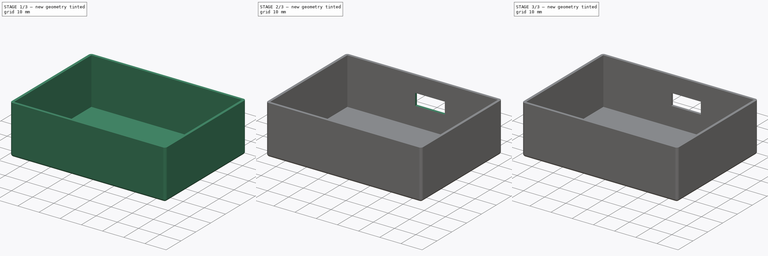
[diagram: build sequence overview — one tinted view per stage of 3, left to right]
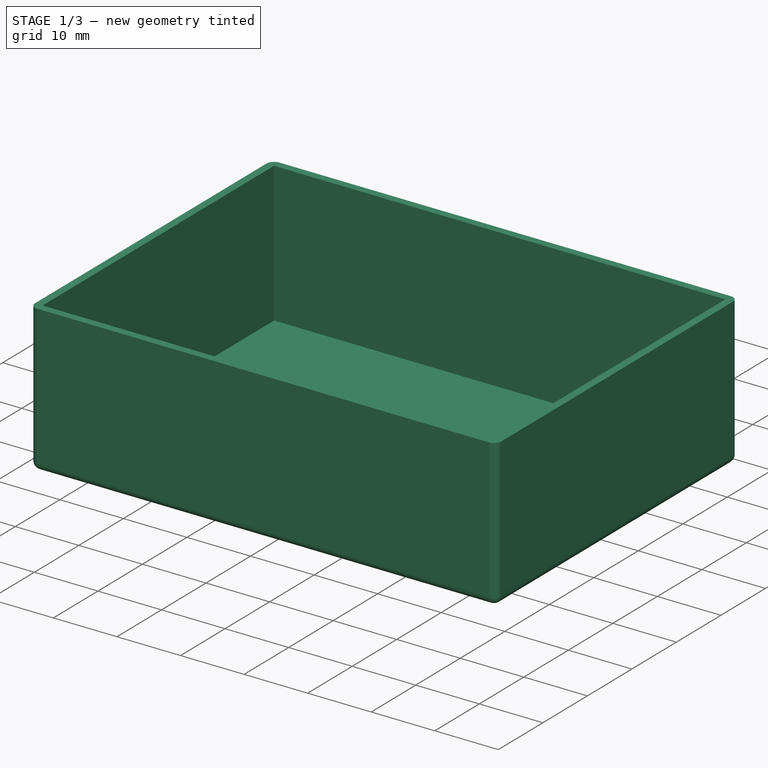
[diagram: stage 1 of 3 — iso view after this stage's code; geometry added in this stage tinted green]
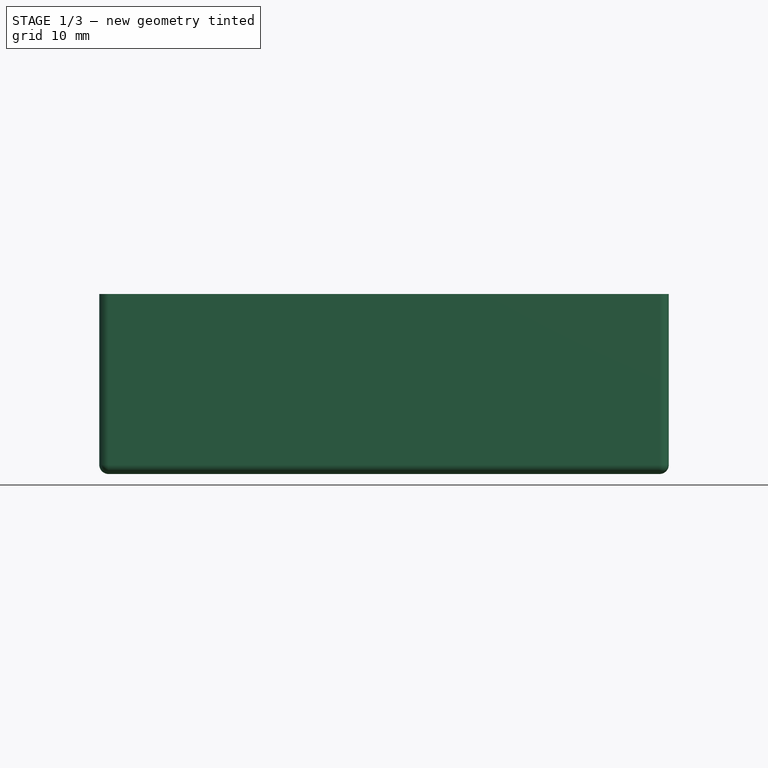
[diagram: stage 1 of 3 — front view after this stage's code; geometry added in this stage tinted green]
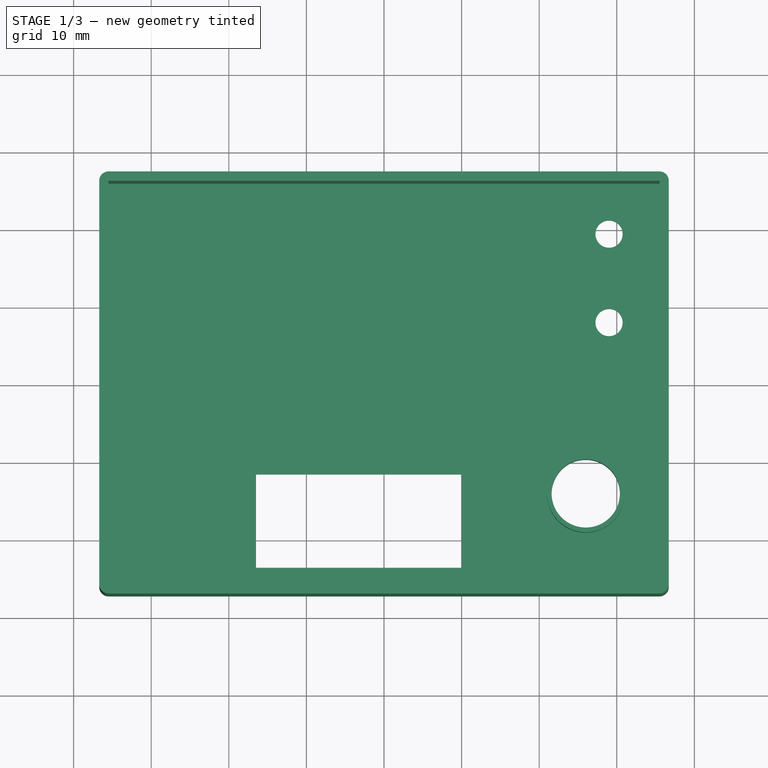
[diagram: stage 1 of 3 — top view after this stage's code; geometry added in this stage tinted green]
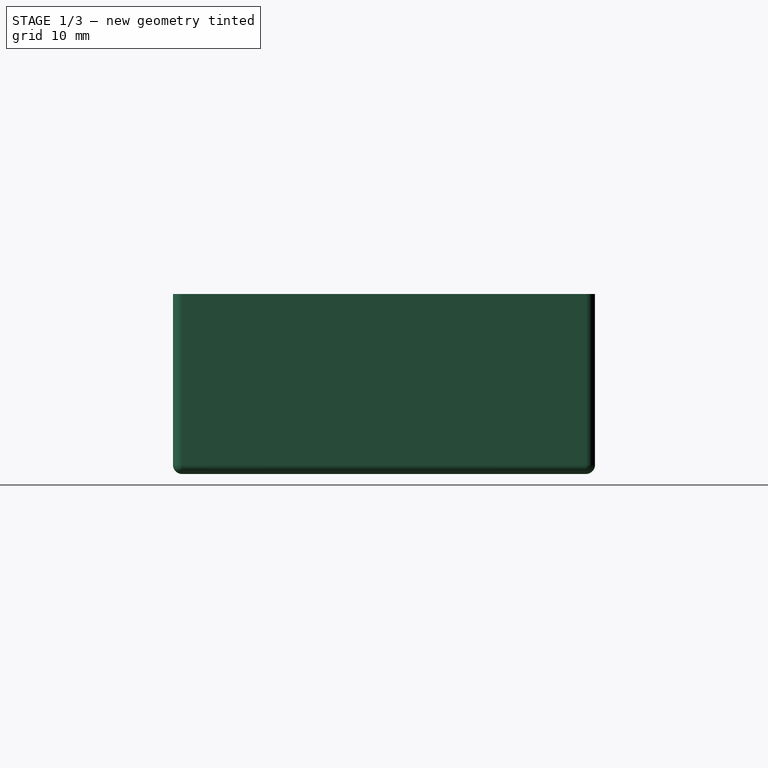
[diagram: stage 1 of 3 — right view after this stage's code; geometry added in this stage tinted green]
FCSTD DOCUMENT  (FreeCAD 0.18.3R)
Label: CajaHorno
License: All rights reserved
LicenseURL: http://en.wikipedia.org/wiki/All_rights_reserved
objects: Sketcher::SketchObject×9, PartDesign::Pocket×5, PartDesign::Pad×4, App::Part×1, PartDesign::Body×1, PartDesign::Thickness×1, PartDesign::Chamfer×1
note: 30 computed .brp shape members not serialized (recipe doc carries the construction recipe); baked Part::Feature solids carry a one-line shape summary decoded from their .brp

FEATURE [App::Part] Part  label="Caja"
  Group = -> [Body]
  Origin = -> Origin
FEATURE [PartDesign::Body] Body  label="main"
  Group = -> [Sketch,Pad,Thickness,Sketch001,Pocket,Chamfer,Sketch002,Pad001,Sketch003,Pocket001,Sketch004,Pocket002,Sketch005,Pocket003,Sketch006,Pocket004,Sketch007,Pad002,Sketch008,Pad003]
  Origin = -> Origin001
  Tip = -> Pad003
FEATURE [Sketcher::SketchObject] Sketch
  MapMode = 5
  Support = -> [Pocket001]
  sketch-geometry (4):
    g0: LineSegment StartX=-35.5 StartY=26 StartZ=0 EndX=35.5 EndY=26 EndZ=0
    g1: LineSegment StartX=35.5 StartY=26 StartZ=0 EndX=35.5 EndY=-26 EndZ=0
    g2: LineSegment StartX=35.5 StartY=-26 StartZ=0 EndX=-35.5 EndY=-26 EndZ=0
    g3: LineSegment StartX=-35.5 StartY=-26 StartZ=0 EndX=-35.5 EndY=26 EndZ=0
  constraints (11):
    c: Coincident(g0,g1)
    c: Coincident(g1,g2)
    c: Coincident(g2,g3)
    c: Coincident(g3,g0)
    c: Horizontal(g0)
    c: Horizontal(g2)
    c: Vertical(g1)
    c: Vertical(g3)
    c: Symmetric(g0,g1,g-1)
    c: DistanceX(g0,g0) = 71
    c: DistanceY(g3,g3) = 52
FEATURE [PartDesign::Pad] Pad
  Length = 22
  Length2 = 100
  Profile = -> Sketch
  Refine = true
  Type = 0
FEATURE [PartDesign::Thickness] Thickness  label="cascarón"
  Base = -> Pad [Face6]
  BaseFeature = -> Pad
  Join = 0
  Mode = 0
  Value = 1.2
FEATURE [Sketcher::SketchObject] Sketch001
  ExternalGeometry = -> [Thickness]
  MapMode = 5
  Placement = pos=(0,0,-1.2) rot=(1,0,0;3.14159rad)
  Support = -> [Thickness]
  sketch-geometry (4):
    g0: LineSegment StartX=-16.5 StartY=23.5 StartZ=0 EndX=10 EndY=23.5 EndZ=0
    g1: LineSegment StartX=10 StartY=23.5 StartZ=0 EndX=10 EndY=11.5 EndZ=0
    g2: LineSegment StartX=10 StartY=11.5 StartZ=0 EndX=-16.5 EndY=11.5 EndZ=0
    g3: LineSegment StartX=-16.5 StartY=11.5 StartZ=0 EndX=-16.5 EndY=23.5 EndZ=0
  constraints (10):
    c: Coincident(g0,g1)
    c: Coincident(g1,g2)
    c: Coincident(g2,g3)
    c: Coincident(g3,g0)
    c: Horizontal(g0)
    c: Horizontal(g2)
    c: Vertical(g1)
    c: Vertical(g3)
    c: DistanceX(g2,g2) = 26.5
    c: DistanceY(g3,g3) = 12
FEATURE [PartDesign::Pocket] Pocket
  BaseFeature = -> Thickness
  Length = 5
  Length2 = 100
  Profile = -> Sketch001
  Refine = true
  Type = 1
FEATURE [PartDesign::Chamfer] Chamfer
  Base = -> Pocket [Edge30,Edge28,Edge32,Edge25]
  BaseFeature = -> Pocket
  Size = 1
FEATURE [Sketcher::SketchObject] Sketch002
  ExternalGeometry = -> [Chamfer]
  MapMode = 5
  Support = -> [Chamfer]
  sketch-geometry (1):
    g0: Circle CenterX=26 CenterY=-14 CenterZ=0 NormalX=0 NormalY=0 NormalZ=1 AngleXU=0 Radius=5
  constraints (3):
    c: Radius(g0) = 5
    c: DistanceY(g-4,g0) = 12
    c: DistanceX(g0,g-4) = 9.5
FEATURE [PartDesign::Pad] Pad001
  BaseFeature = -> Chamfer
  Length = 5
  Length2 = 100
  Profile = -> Sketch002
  Refine = true
  Type = 0
FEATURE [Sketcher::SketchObject] Sketch003
  ExternalGeometry = -> [Pad001]
  MapMode = 5
  Placement = pos=(0,0,5) rot=(0,0,1;0rad)
  Support = -> [Pad001]
  sketch-geometry (1):
    g0: Circle CenterX=26 CenterY=-14 CenterZ=0 NormalX=0 NormalY=0 NormalZ=1 AngleXU=0 Radius=4.4
  constraints (2):
    c: Coincident(g0,g-3)
    c: Radius(g0) = 4.4
FEATURE [PartDesign::Pocket] Pocket001
  BaseFeature = -> Pad001
  Length = 5
  Length2 = 100
  Profile = -> Sketch003
  Refine = true
  Type = 1
FEATURE [Sketcher::SketchObject] Sketch004
  ExternalGeometry = -> [Pocket001]
  MapMode = 5
  Support = -> [Pocket001]
  sketch-geometry (1):
    g0: Circle CenterX=29 CenterY=19.5 CenterZ=0 NormalX=0 NormalY=0 NormalZ=1 AngleXU=0 Radius=1.75
  constraints (3):
    c: DistanceY(g0,g-4) = 6.5
    c: DistanceX(g0,g-4) = 6.5
    c: Radius(g0) = 1.75
FEATURE [PartDesign::Pocket] Pocket002
  BaseFeature = -> Pocket001
  Length = 5
  Length2 = 100
  Profile = -> Sketch004
  Refine = true
  Type = 1
FEATURE [Sketcher::SketchObject] Sketch005
  ExternalGeometry = -> [Pocket002]
  MapMode = 5
  Support = -> [Pocket002]
  sketch-geometry (1):
    g0: Circle CenterX=29 CenterY=8.09949 CenterZ=0 NormalX=0 NormalY=0 NormalZ=1 AngleXU=0 Radius=1.75
  constraints (2):
    c: DistanceX(g-3,g0) = 0
    c: Radius(g0) = 1.75
FEATURE [PartDesign::Pocket] Pocket003
  BaseFeature = -> Pocket002
  Length = 5
  Length2 = 100
  Profile = -> Sketch005
  Refine = true
  Type = 1
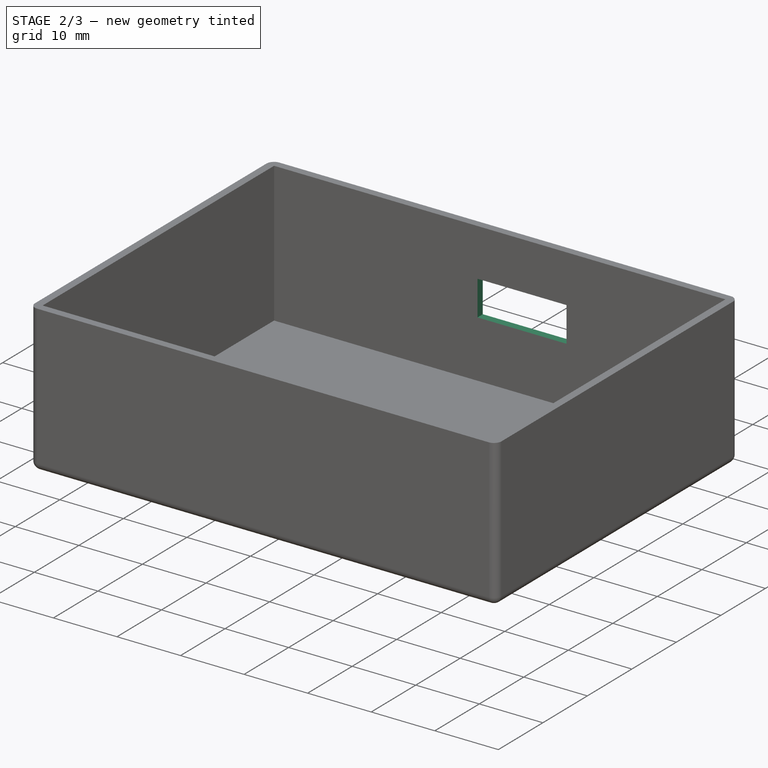
[diagram: stage 2 of 3 — iso view after this stage's code; geometry added in this stage tinted green]
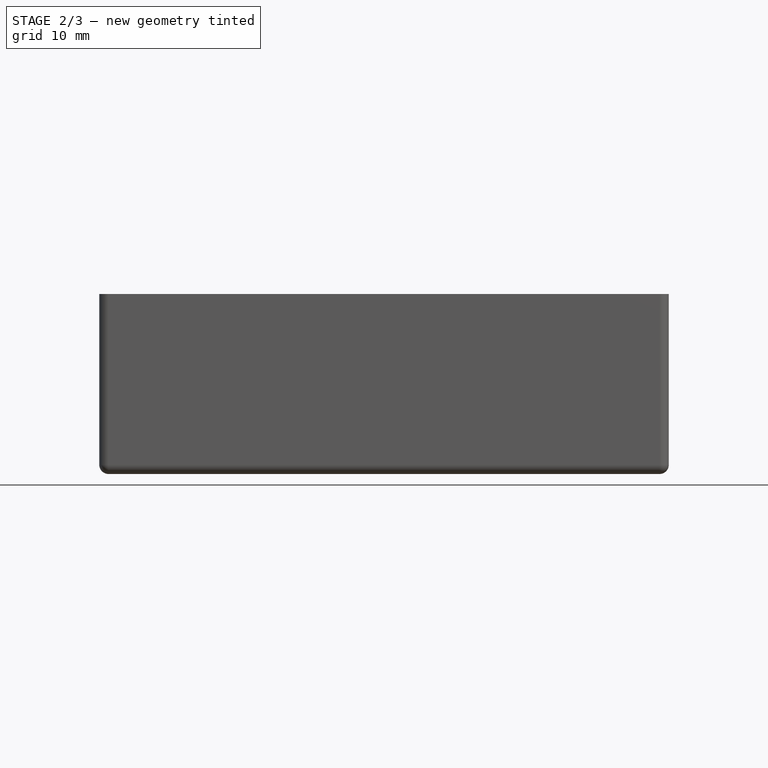
[diagram: stage 2 of 3 — front view after this stage's code; geometry added in this stage tinted green]
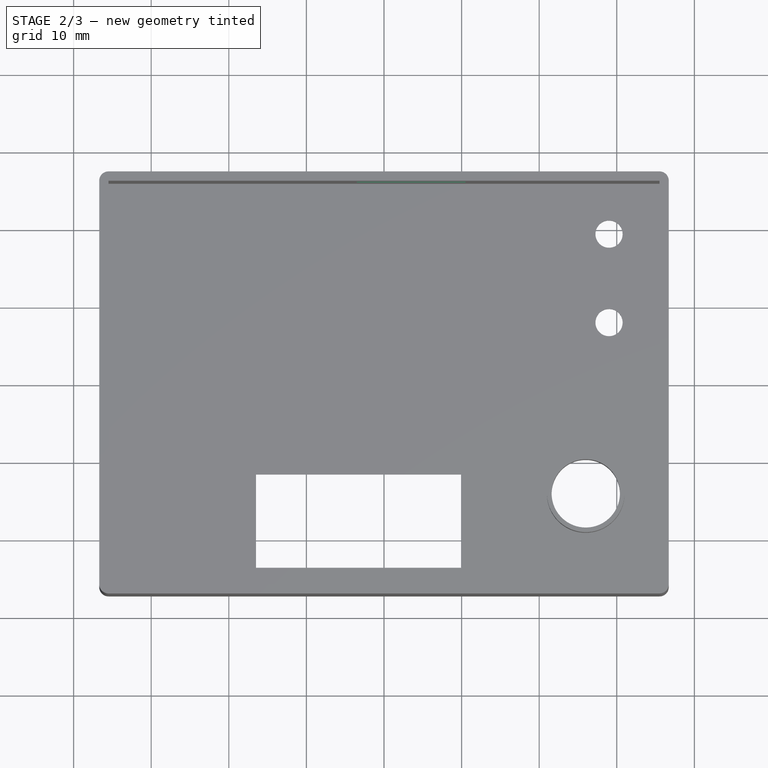
[diagram: stage 2 of 3 — top view after this stage's code; geometry added in this stage tinted green]
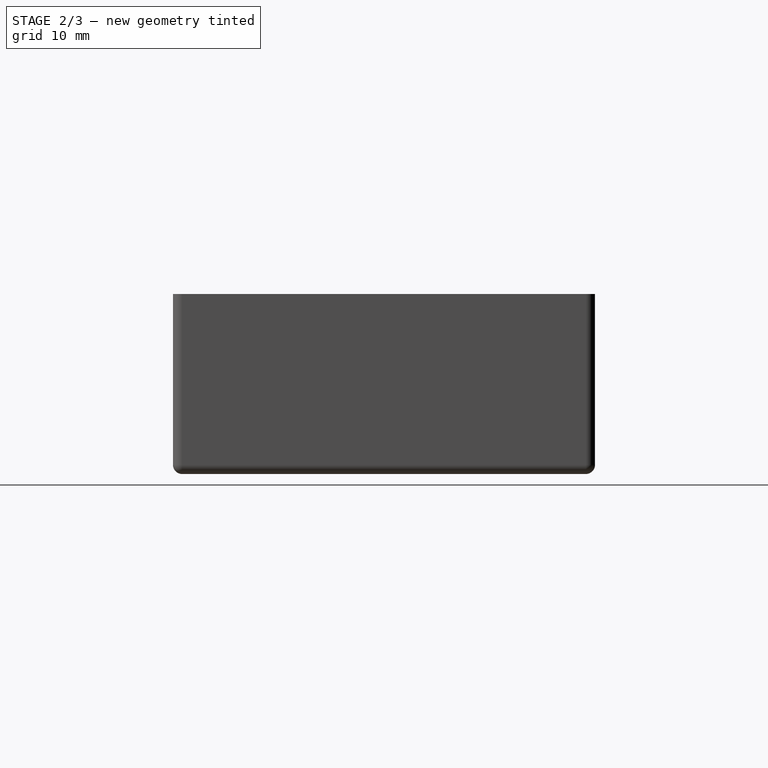
[diagram: stage 2 of 3 — right view after this stage's code; geometry added in this stage tinted green]
FEATURE [Sketcher::SketchObject] Sketch006
  ExternalGeometry = -> [Pocket003]
  MapMode = 5
  Placement = pos=(0,26,0) rot=(1,0,0;1.5708rad)
  Support = -> [Pocket003]
  sketch-geometry (4):
    g0: LineSegment StartX=-3.5 StartY=14.5 StartZ=0 EndX=10.5 EndY=14.5 EndZ=0
    g1: LineSegment StartX=10.5 StartY=14.5 StartZ=0 EndX=10.5 EndY=9 EndZ=0
    g2: LineSegment StartX=10.5 StartY=9 StartZ=0 EndX=-3.5 EndY=9 EndZ=0
    g3: LineSegment StartX=-3.5 StartY=9 StartZ=0 EndX=-3.5 EndY=14.5 EndZ=0
  constraints (12):
    c: Coincident(g0,g1)
    c: Coincident(g1,g2)
    c: Coincident(g2,g3)
    c: Coincident(g3,g0)
    c: Horizontal(g0)
    c: Horizontal(g2)
    c: Vertical(g1)
    c: Vertical(g3)
    c: DistanceX(g0,g-4) = 25
    c: DistanceX(g0,g0) = 14
    c: DistanceY(g0,g-4) = 7.5
    c: DistanceY(g1,g1) = 5.5
FEATURE [PartDesign::Pocket] Pocket004
  BaseFeature = -> Pocket003
  Length = 5
  Length2 = 100
  Profile = -> Sketch006
  Refine = true
  Type = 1
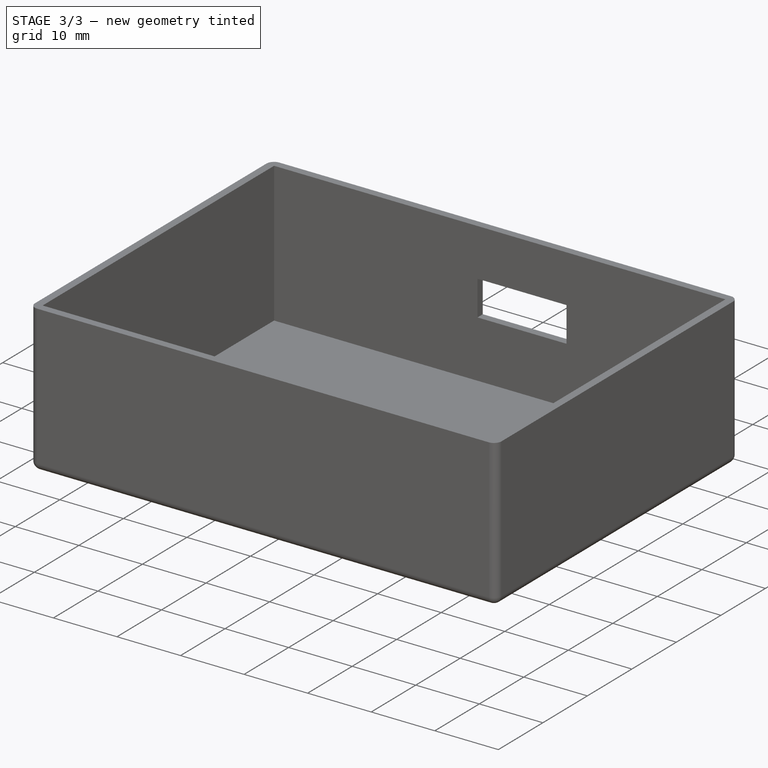
[diagram: stage 3 of 3 — iso view after this stage's code; geometry added in this stage tinted green]
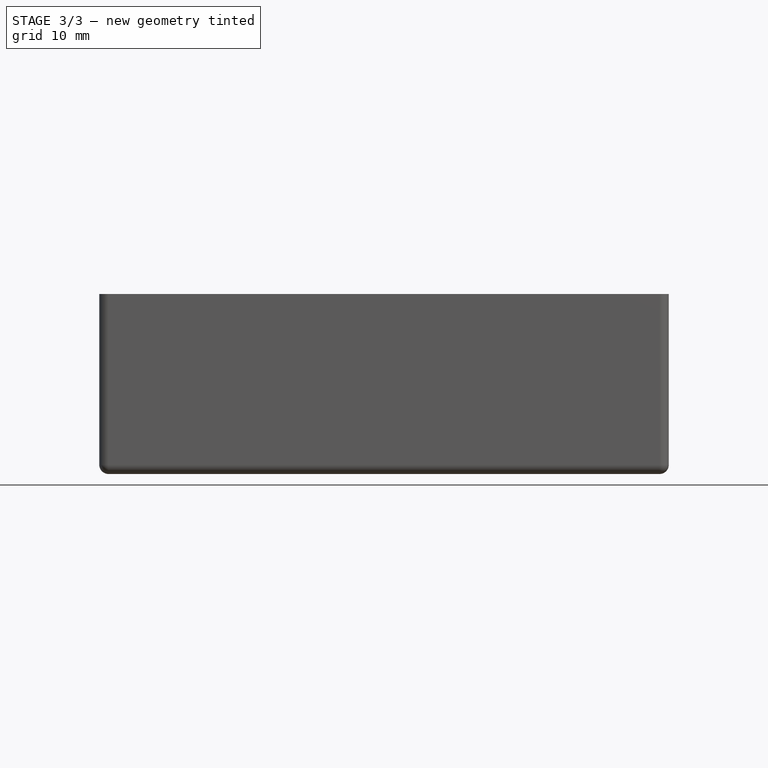
[diagram: stage 3 of 3 — front view after this stage's code; geometry added in this stage tinted green]
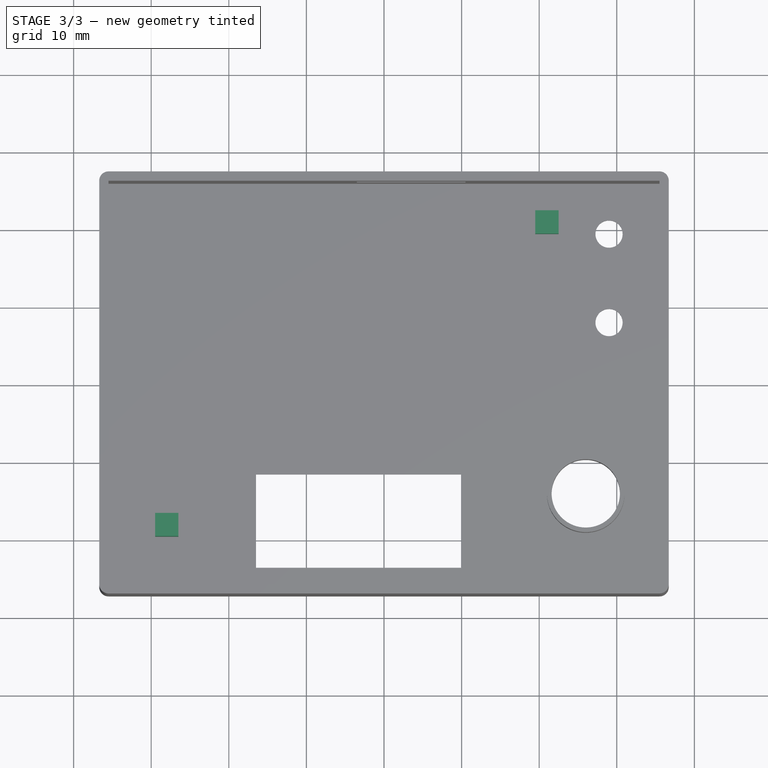
[diagram: stage 3 of 3 — top view after this stage's code; geometry added in this stage tinted green]
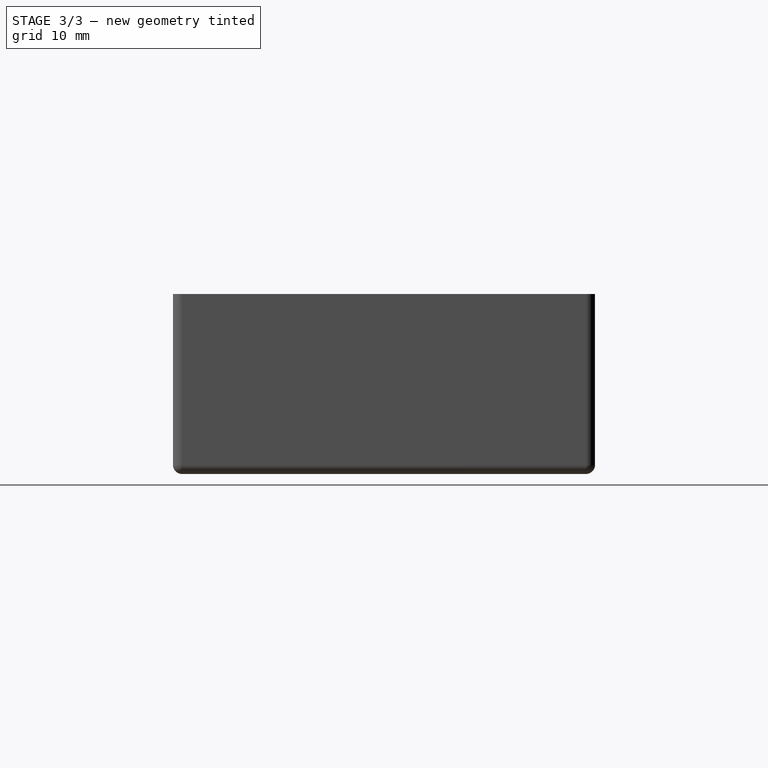
[diagram: stage 3 of 3 — right view after this stage's code; geometry added in this stage tinted green]
FEATURE [Sketcher::SketchObject] Sketch007
  ExternalGeometry = -> [Pocket004]
  MapMode = 5
  Support = -> [Pocket004]
  sketch-geometry (4):
    g0: LineSegment StartX=19.5 StartY=22.5 StartZ=0 EndX=22.5 EndY=22.5 EndZ=0
    g1: LineSegment StartX=22.5 StartY=22.5 StartZ=0 EndX=22.5 EndY=19.5 EndZ=0
    g2: LineSegment StartX=22.5 StartY=19.5 StartZ=0 EndX=19.5 EndY=19.5 EndZ=0
    g3: LineSegment StartX=19.5 StartY=19.5 StartZ=0 EndX=19.5 EndY=22.5 EndZ=0
  constraints (12):
    c: Coincident(g0,g1)
    c: Coincident(g1,g2)
    c: Coincident(g2,g3)
    c: Coincident(g3,g0)
    c: Horizontal(g0)
    c: Horizontal(g2)
    c: Vertical(g1)
    c: Vertical(g3)
    c: Equal(g3,g0)
    c: DistanceX(g2,g2) = 3
    c: DistanceX(g1,g-3) = 6.5
    c: DistanceY(g-3,g0) = 3
FEATURE [PartDesign::Pad] Pad002
  BaseFeature = -> Pocket004
  Length = 4
  Length2 = 100
  Profile = -> Sketch007
  Refine = true
  Type = 0
FEATURE [Sketcher::SketchObject] Sketch008
  ExternalGeometry = -> [Pad002]
  MapMode = 5
  Support = -> [Pad002]
  sketch-geometry (4):
    g0: LineSegment StartX=-29.5 StartY=-16.5 StartZ=0 EndX=-26.5 EndY=-16.5 EndZ=0
    g1: LineSegment StartX=-26.5 StartY=-16.5 StartZ=0 EndX=-26.5 EndY=-19.5 EndZ=0
    g2: LineSegment StartX=-26.5 StartY=-19.5 StartZ=0 EndX=-29.5 EndY=-19.5 EndZ=0
    g3: LineSegment StartX=-29.5 StartY=-19.5 StartZ=0 EndX=-29.5 EndY=-16.5 EndZ=0
  constraints (12):
    c: Coincident(g0,g1)
    c: Coincident(g1,g2)
    c: Coincident(g2,g3)
    c: Coincident(g3,g0)
    c: Horizontal(g0)
    c: Horizontal(g2)
    c: Vertical(g1)
    c: Vertical(g3)
    c: Equal(g0,g3)
    c: DistanceX(g2,g2) = 3
    c: DistanceX(g1,g-3) = 10
    c: DistanceY(g-3,g1) = 4
FEATURE [PartDesign::Pad] Pad003
  BaseFeature = -> Pad002
  Length = 4
  Length2 = 100
  Profile = -> Sketch008
  Refine = true
  Type = 0
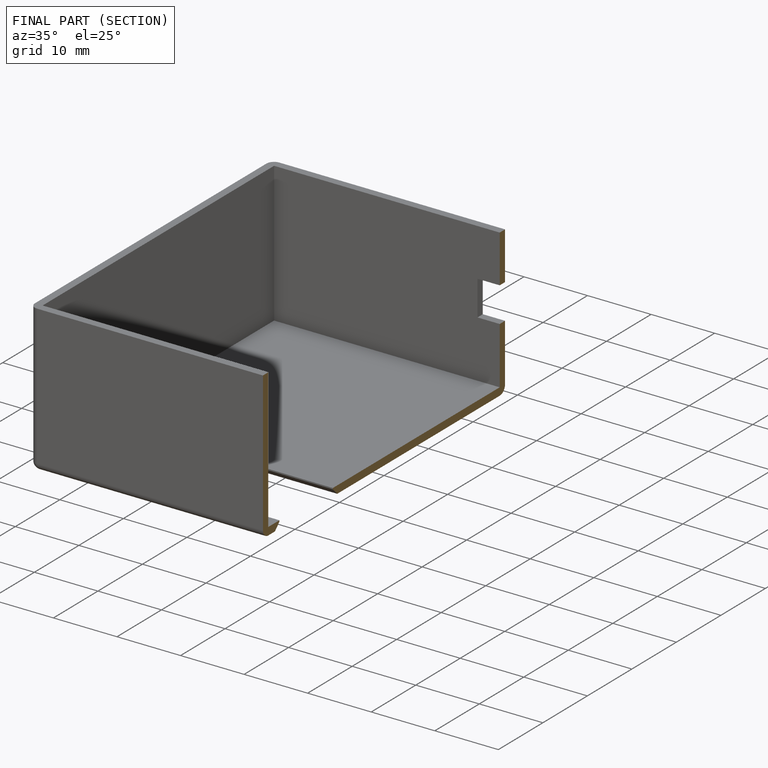
[diagram: finished part — half-section view (interior)]
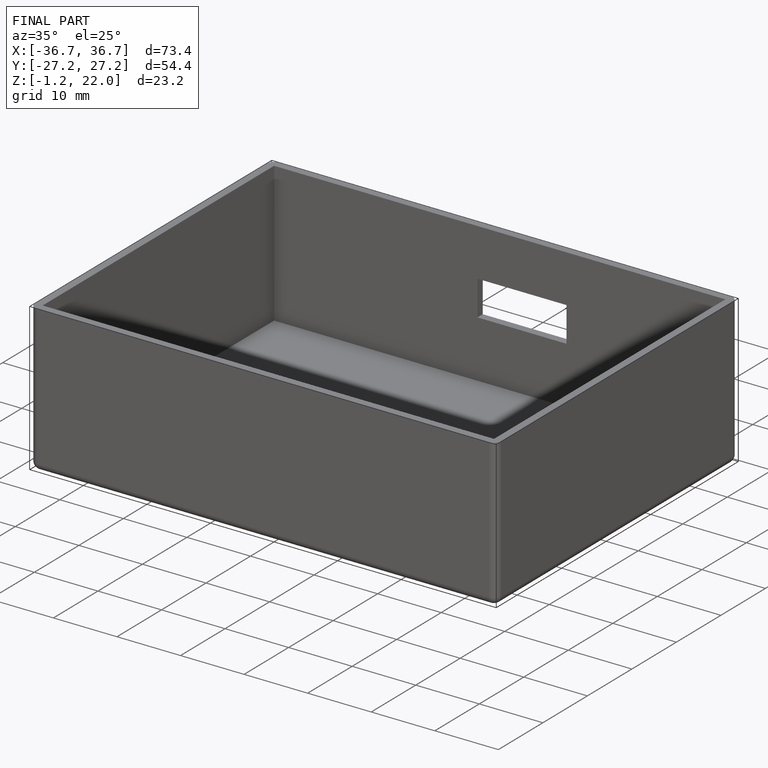
[diagram: finished part — iso view with bounding-box wireframe]
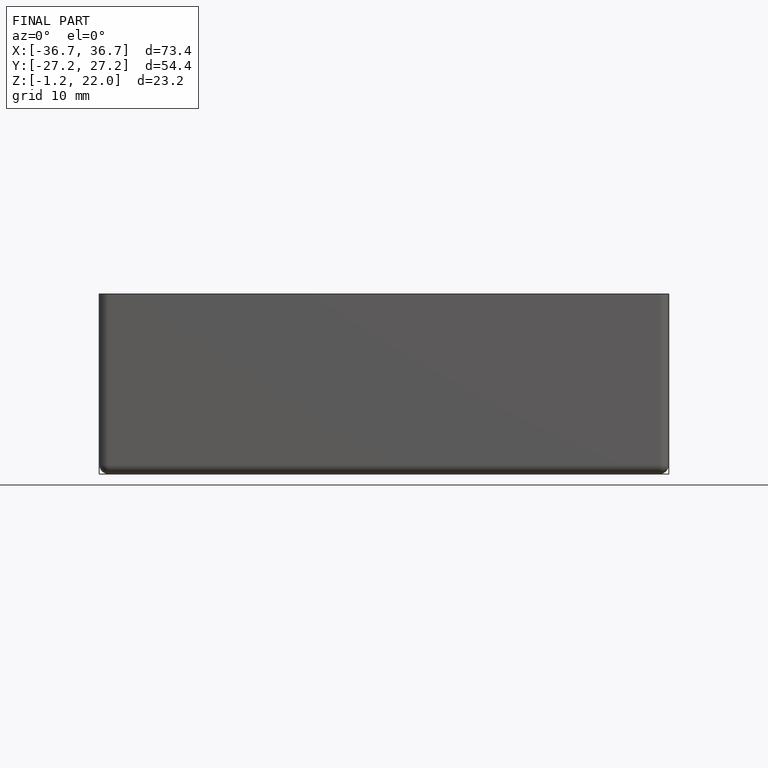
[diagram: finished part — front view with bounding-box wireframe]
